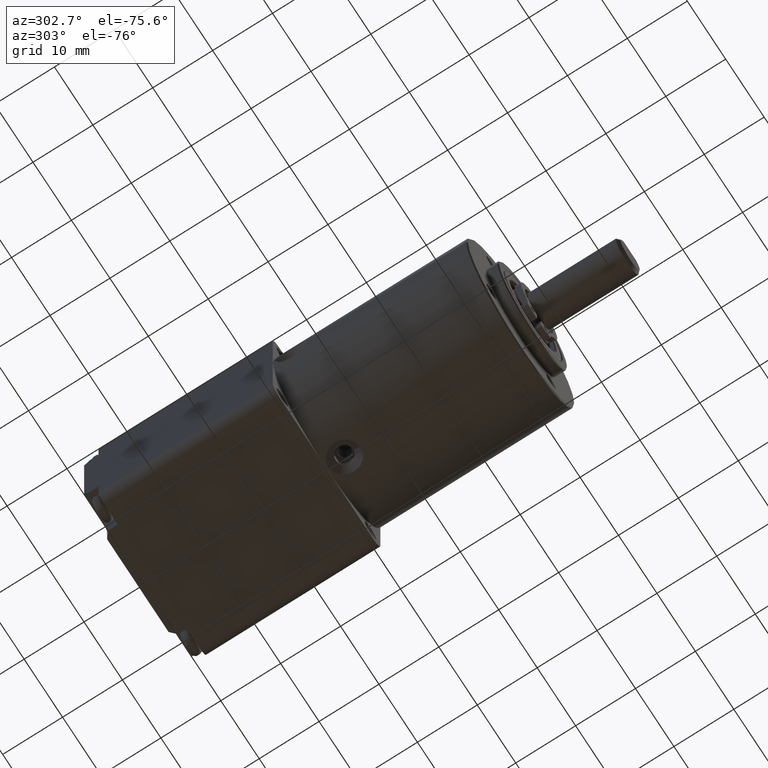
[diagram: clean part render]
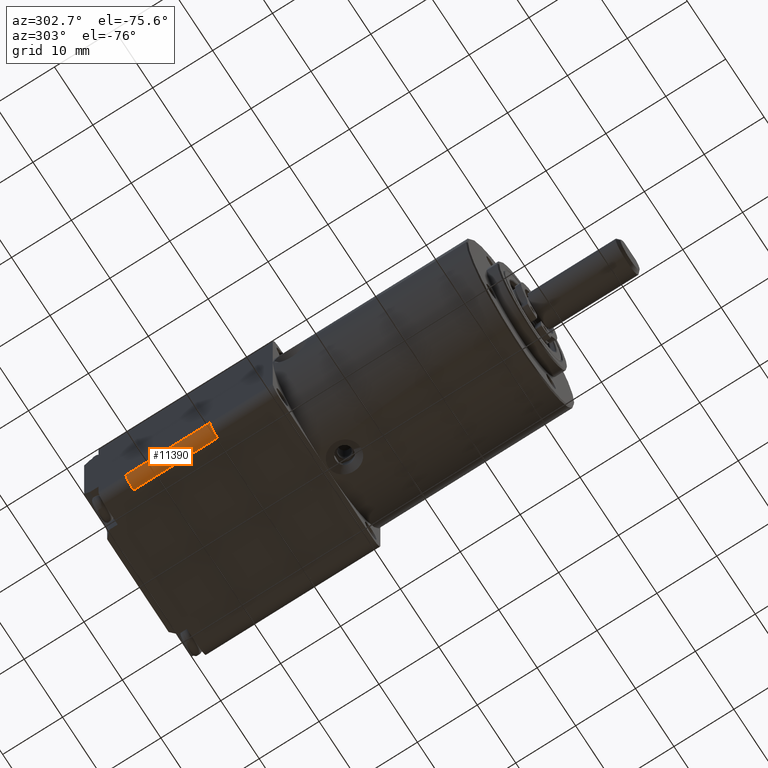
[diagram: same view with one face highlighted and labeled with its STEP entity id]
A machine part, auxiliary view. The second image highlights one B-rep face of the part: STEP entity #11390.
In plain terms, the highlighted cylindrical surface (edge-blend (fillet) strip) has radius 2 mm, axis along (-0, -1, -0).
Its self-contained STEP definition (entity closure, byte-faithful):
#72 = CARTESIAN_POINT ( 'NONE',  ( -14.00000000000000355, 14.00000000000000000, -11.99999999999998757 ) ) ;
#220 = CARTESIAN_POINT ( 'NONE',  ( -11.99999999999998934, 14.00000000000000000, -14.00000000000000178 ) ) ;
#2992 = EDGE_CURVE ( 'NONE', #13496, #17670, #26366, .T. ) ;
#4987 = DIRECTION ( 'NONE',  ( 0.000000000000000000, 1.000000000000000000, 0.000000000000000000 ) ) ;
#5388 = DIRECTION ( 'NONE',  ( 0.000000000000000000, 0.000000000000000000, 1.000000000000000000 ) ) ;
#5836 = AXIS2_PLACEMENT_3D ( 'NONE', #10087, #7226, #17010 ) ;
#7038 = DIRECTION ( 'NONE',  ( -0.000000000000000000, -1.000000000000000000, -0.000000000000000000 ) ) ;
#7226 = DIRECTION ( 'NONE',  ( -0.000000000000000000, -1.000000000000000000, -0.000000000000000000 ) ) ;
#7859 = CYLINDRICAL_SURFACE ( 'NONE', #5836, 2.000000000000000000 ) ;
#8289 = ORIENTED_EDGE ( 'NONE', *, *, #20760, .F. ) ;
#9287 = LINE ( 'NONE', #11688, #22507 ) ;
#10087 = CARTESIAN_POINT ( 'NONE',  ( -12.00000000000000355, 14.00000000000000000, -12.00000000000000178 ) ) ;
#11390 = ADVANCED_FACE ( 'NONE', ( #20055 ), #7859, .T. ) ;
#11688 = CARTESIAN_POINT ( 'NONE',  ( -11.99999999999998934, 14.00000000000000000, -14.00000000000000178 ) ) ;
#12062 = EDGE_LOOP ( 'NONE', ( #18634, #13653, #8289, #29920 ) ) ;
#12377 = CIRCLE ( 'NONE', #13414, 2.000000000000000000 ) ;
#12746 = VECTOR ( 'NONE', #14812, 1000.000000000000000 ) ;
#13414 = AXIS2_PLACEMENT_3D ( 'NONE', #15167, #14854, #5388 ) ;
#13496 = VERTEX_POINT ( 'NONE', #24957 ) ;
#13653 = ORIENTED_EDGE ( 'NONE', *, *, #2992, .F. ) ;
#14812 = DIRECTION ( 'NONE',  ( -0.000000000000000000, -1.000000000000000000, -0.000000000000000000 ) ) ;
#14854 = DIRECTION ( 'NONE',  ( 0.000000000000000000, 1.000000000000000000, 0.000000000000000000 ) ) ;
#15167 = CARTESIAN_POINT ( 'NONE',  ( -12.00000000000000355, 14.00000000000000000, -12.00000000000000178 ) ) ;
#17010 = DIRECTION ( 'NONE',  ( 0.000000000000000000, 0.000000000000000000, -1.000000000000000000 ) ) ;
#17670 = VERTEX_POINT ( 'NONE', #22096 ) ;
#18634 = ORIENTED_EDGE ( 'NONE', *, *, #19488, .T. ) ;
#19488 = EDGE_CURVE ( 'NONE', #22106, #17670, #22633, .T. ) ;
#20055 = FACE_OUTER_BOUND ( 'NONE', #12062, .T. ) ;
#20760 = EDGE_CURVE ( 'NONE', #23037, #13496, #12377, .T. ) ;
#21597 = AXIS2_PLACEMENT_3D ( 'NONE', #31301, #4987, #21679 ) ;
#21679 = DIRECTION ( 'NONE',  ( 0.000000000000000000, 0.000000000000000000, 1.000000000000000000 ) ) ;
#22096 = CARTESIAN_POINT ( 'NONE',  ( -14.00000000000000355, 0.000000000000000000, -11.99999999999998757 ) ) ;
#22106 = VERTEX_POINT ( 'NONE', #24171 ) ;
#22507 = VECTOR ( 'NONE', #7038, 1000.000000000000000 ) ;
#22633 = CIRCLE ( 'NONE', #21597, 2.000000000000000000 ) ;
#23037 = VERTEX_POINT ( 'NONE', #220 ) ;
#24171 = CARTESIAN_POINT ( 'NONE',  ( -11.99999999999998934, 0.000000000000000000, -14.00000000000000178 ) ) ;
#24957 = CARTESIAN_POINT ( 'NONE',  ( -14.00000000000000355, 14.00000000000000000, -11.99999999999998757 ) ) ;
#26366 = LINE ( 'NONE', #72, #12746 ) ;
#29632 = EDGE_CURVE ( 'NONE', #23037, #22106, #9287, .T. ) ;
#29920 = ORIENTED_EDGE ( 'NONE', *, *, #29632, .T. ) ;
#31301 = CARTESIAN_POINT ( 'NONE',  ( -12.00000000000000355, 0.000000000000000000, -12.00000000000000178 ) ) ;